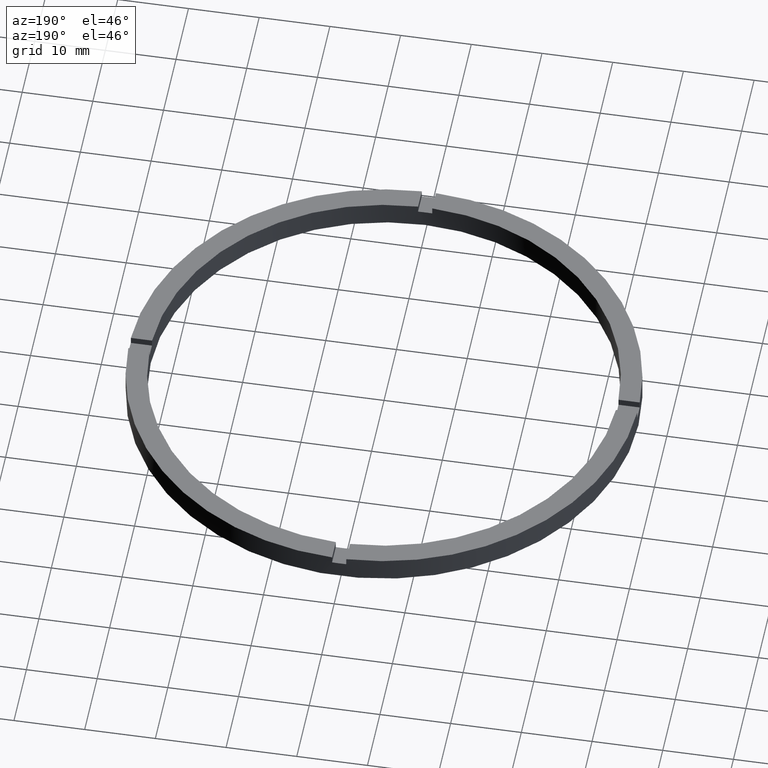
[diagram: clean part render]
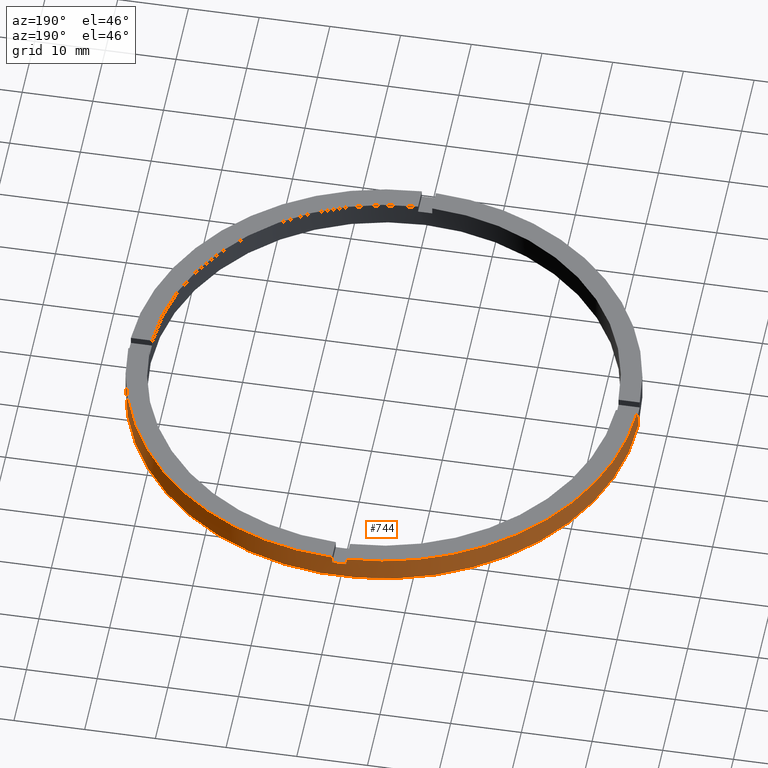
[diagram: same view with one face highlighted and labeled with its STEP entity id]
A machine part, auxiliary view. The second image highlights one B-rep face of the part: STEP entity #744.
In plain terms, the highlighted cylindrical surface (partial cylindrical patch) has radius 36 mm, axis along (-0, -0, -1).
Its self-contained STEP definition (entity closure, byte-faithful):
#1 = DIRECTION ( 'NONE',  ( -0.000000000000000000, -0.000000000000000000, -1.000000000000000000 ) ) ;
#10 = AXIS2_PLACEMENT_3D ( 'NONE', #440, #682, #284 ) ;
#15 = LINE ( 'NONE', #208, #17 ) ;
#17 = VECTOR ( 'NONE', #385, 1000.000000000000000 ) ;
#31 = CIRCLE ( 'NONE', #675, 36.00000000000000000 ) ;
#34 = LINE ( 'NONE', #452, #281 ) ;
#36 = ORIENTED_EDGE ( 'NONE', *, *, #370, .F. ) ;
#39 = CARTESIAN_POINT ( 'NONE',  ( 35.98610843089316091, 0.9999999999998421263, 3.500000000000000000 ) ) ;
#41 = VERTEX_POINT ( 'NONE', #226 ) ;
#44 = VERTEX_POINT ( 'NONE', #564 ) ;
#46 = VECTOR ( 'NONE', #260, 1000.000000000000000 ) ;
#69 = ORIENTED_EDGE ( 'NONE', *, *, #238, .F. ) ;
#80 = CARTESIAN_POINT ( 'NONE',  ( 0.000000000000000000, 0.000000000000000000, 3.500000000000000000 ) ) ;
#88 = VECTOR ( 'NONE', #1, 1000.000000000000000 ) ;
#94 = VERTEX_POINT ( 'NONE', #523 ) ;
#105 = VERTEX_POINT ( 'NONE', #39 ) ;
#107 = CIRCLE ( 'NONE', #425, 36.00000000000000000 ) ;
#120 = ORIENTED_EDGE ( 'NONE', *, *, #612, .T. ) ;
#132 = CARTESIAN_POINT ( 'NONE',  ( 0.000000000000000000, 0.000000000000000000, 2.500000000000000000 ) ) ;
#138 = DIRECTION ( 'NONE',  ( 0.000000000000000000, 0.000000000000000000, 1.000000000000000000 ) ) ;
#144 = DIRECTION ( 'NONE',  ( 1.000000000000000000, 0.000000000000000000, 0.000000000000000000 ) ) ;
#151 = DIRECTION ( 'NONE',  ( -0.000000000000000000, -0.000000000000000000, -1.000000000000000000 ) ) ;
#154 = CARTESIAN_POINT ( 'NONE',  ( 35.98610843089316091, 0.9999999999998421263, 3.500000000000000000 ) ) ;
#177 = CARTESIAN_POINT ( 'NONE',  ( -1.000000000000025091, 35.98610843089315381, 3.500000000000000000 ) ) ;
#194 = CARTESIAN_POINT ( 'NONE',  ( 0.000000000000000000, 0.000000000000000000, 2.500000000000000000 ) ) ;
#208 = CARTESIAN_POINT ( 'NONE',  ( 36.00000000000000000, 4.408728476930470856E-15, 3.500000000000000000 ) ) ;
#214 = EDGE_CURVE ( 'NONE', #105, #691, #270, .T. ) ;
#224 = EDGE_CURVE ( 'NONE', #94, #691, #34, .T. ) ;
#225 = DIRECTION ( 'NONE',  ( -1.000000000000000000, 0.000000000000000000, 0.000000000000000000 ) ) ;
#226 = CARTESIAN_POINT ( 'NONE',  ( 36.00000000000000000, 4.408728476930470856E-15, 0.000000000000000000 ) ) ;
#228 = CARTESIAN_POINT ( 'NONE',  ( 0.000000000000000000, 0.000000000000000000, 3.500000000000000000 ) ) ;
#233 = AXIS2_PLACEMENT_3D ( 'NONE', #80, #250, #316 ) ;
#234 = DIRECTION ( 'NONE',  ( 1.000000000000000000, 0.000000000000000000, 0.000000000000000000 ) ) ;
#238 = EDGE_CURVE ( 'NONE', #576, #659, #31, .T. ) ;
#241 = EDGE_CURVE ( 'NONE', #576, #41, #15, .T. ) ;
#243 = DIRECTION ( 'NONE',  ( 1.000000000000000000, 0.000000000000000000, 0.000000000000000000 ) ) ;
#246 = EDGE_CURVE ( 'NONE', #663, #330, #551, .T. ) ;
#250 = DIRECTION ( 'NONE',  ( 0.000000000000000000, 0.000000000000000000, 1.000000000000000000 ) ) ;
#254 = AXIS2_PLACEMENT_3D ( 'NONE', #132, #685, #746 ) ;
#260 = DIRECTION ( 'NONE',  ( -0.000000000000000000, -0.000000000000000000, -1.000000000000000000 ) ) ;
#264 = DIRECTION ( 'NONE',  ( 0.000000000000000000, 0.000000000000000000, 1.000000000000000000 ) ) ;
#268 = CARTESIAN_POINT ( 'NONE',  ( 0.000000000000000000, 0.000000000000000000, 3.500000000000000000 ) ) ;
#270 = CIRCLE ( 'NONE', #546, 36.00000000000000000 ) ;
#281 = VECTOR ( 'NONE', #503, 1000.000000000000000 ) ;
#284 = DIRECTION ( 'NONE',  ( 1.000000000000000000, 0.000000000000000000, 0.000000000000000000 ) ) ;
#291 = VECTOR ( 'NONE', #151, 1000.000000000000000 ) ;
#295 = CARTESIAN_POINT ( 'NONE',  ( 0.000000000000000000, 0.000000000000000000, 2.500000000000000000 ) ) ;
#306 = VERTEX_POINT ( 'NONE', #780 ) ;
#310 = LINE ( 'NONE', #473, #577 ) ;
#316 = DIRECTION ( 'NONE',  ( 1.000000000000000000, 0.000000000000000000, 0.000000000000000000 ) ) ;
#321 = LINE ( 'NONE', #154, #88 ) ;
#324 = EDGE_CURVE ( 'NONE', #94, #453, #357, .T. ) ;
#328 = ORIENTED_EDGE ( 'NONE', *, *, #246, .F. ) ;
#330 = VERTEX_POINT ( 'NONE', #396 ) ;
#340 = CYLINDRICAL_SURFACE ( 'NONE', #549, 36.00000000000000000 ) ;
#357 = CIRCLE ( 'NONE', #254, 36.00000000000000000 ) ;
#370 = EDGE_CURVE ( 'NONE', #306, #44, #390, .T. ) ;
#383 = ORIENTED_EDGE ( 'NONE', *, *, #483, .T. ) ;
#385 = DIRECTION ( 'NONE',  ( -0.000000000000000000, -0.000000000000000000, -1.000000000000000000 ) ) ;
#390 = CIRCLE ( 'NONE', #233, 36.00000000000000000 ) ;
#394 = ORIENTED_EDGE ( 'NONE', *, *, #241, .T. ) ;
#396 = CARTESIAN_POINT ( 'NONE',  ( -36.00000000000000000, 0.000000000000000000, 0.000000000000000000 ) ) ;
#408 = LINE ( 'NONE', #177, #46 ) ;
#421 = DIRECTION ( 'NONE',  ( -0.000000000000000000, -0.000000000000000000, -1.000000000000000000 ) ) ;
#424 = CARTESIAN_POINT ( 'NONE',  ( 0.9999999999999749090, 35.98610843089316091, 3.500000000000000000 ) ) ;
#425 = AXIS2_PLACEMENT_3D ( 'NONE', #194, #138, #243 ) ;
#440 = CARTESIAN_POINT ( 'NONE',  ( 0.000000000000000000, 0.000000000000000000, 0.000000000000000000 ) ) ;
#441 = EDGE_CURVE ( 'NONE', #41, #330, #639, .T. ) ;
#445 = CARTESIAN_POINT ( 'NONE',  ( -36.00000000000000000, 0.000000000000000000, 3.500000000000000000 ) ) ;
#446 = EDGE_CURVE ( 'NONE', #652, #663, #107, .T. ) ;
#452 = CARTESIAN_POINT ( 'NONE',  ( 0.9999999999999749090, 35.98610843089316091, 3.500000000000000000 ) ) ;
#453 = VERTEX_POINT ( 'NONE', #531 ) ;
#462 = CARTESIAN_POINT ( 'NONE',  ( 35.98610843089316091, 0.9999999999998421263, 2.500000000000000000 ) ) ;
#466 = ORIENTED_EDGE ( 'NONE', *, *, #441, .T. ) ;
#468 = ORIENTED_EDGE ( 'NONE', *, *, #779, .T. ) ;
#473 = CARTESIAN_POINT ( 'NONE',  ( -35.98610843089316091, 0.9999999999999729106, 3.500000000000000000 ) ) ;
#483 = EDGE_CURVE ( 'NONE', #306, #453, #408, .T. ) ;
#500 = FACE_OUTER_BOUND ( 'NONE', #594, .T. ) ;
#503 = DIRECTION ( 'NONE',  ( 0.000000000000000000, 0.000000000000000000, 1.000000000000000000 ) ) ;
#507 = CARTESIAN_POINT ( 'NONE',  ( -35.98610843089316091, 0.9999999999999729106, 2.500000000000000000 ) ) ;
#510 = CARTESIAN_POINT ( 'NONE',  ( -36.00000000000000000, 0.000000000000000000, 2.500000000000000000 ) ) ;
#523 = CARTESIAN_POINT ( 'NONE',  ( 0.9999999999999749090, 35.98610843089316091, 2.500000000000000000 ) ) ;
#531 = CARTESIAN_POINT ( 'NONE',  ( -1.000000000000025091, 35.98610843089315381, 2.500000000000000000 ) ) ;
#543 = CARTESIAN_POINT ( 'NONE',  ( 36.00000000000000000, 4.408728476930470856E-15, 2.500000000000000000 ) ) ;
#546 = AXIS2_PLACEMENT_3D ( 'NONE', #268, #264, #234 ) ;
#549 = AXIS2_PLACEMENT_3D ( 'NONE', #228, #421, #225 ) ;
#551 = LINE ( 'NONE', #445, #291 ) ;
#564 = CARTESIAN_POINT ( 'NONE',  ( -35.98610843089316091, 0.9999999999999729106, 3.500000000000000000 ) ) ;
#567 = ORIENTED_EDGE ( 'NONE', *, *, #224, .T. ) ;
#576 = VERTEX_POINT ( 'NONE', #543 ) ;
#577 = VECTOR ( 'NONE', #688, 1000.000000000000000 ) ;
#579 = ORIENTED_EDGE ( 'NONE', *, *, #446, .F. ) ;
#588 = ORIENTED_EDGE ( 'NONE', *, *, #324, .F. ) ;
#594 = EDGE_LOOP ( 'NONE', ( #69, #394, #466, #328, #579, #120, #36, #383, #588, #567, #709, #468 ) ) ;
#612 = EDGE_CURVE ( 'NONE', #652, #44, #310, .T. ) ;
#639 = CIRCLE ( 'NONE', #10, 36.00000000000000000 ) ;
#652 = VERTEX_POINT ( 'NONE', #507 ) ;
#659 = VERTEX_POINT ( 'NONE', #462 ) ;
#663 = VERTEX_POINT ( 'NONE', #510 ) ;
#675 = AXIS2_PLACEMENT_3D ( 'NONE', #295, #782, #144 ) ;
#682 = DIRECTION ( 'NONE',  ( 0.000000000000000000, 0.000000000000000000, 1.000000000000000000 ) ) ;
#685 = DIRECTION ( 'NONE',  ( 0.000000000000000000, -0.000000000000000000, 1.000000000000000000 ) ) ;
#688 = DIRECTION ( 'NONE',  ( 0.000000000000000000, 0.000000000000000000, 1.000000000000000000 ) ) ;
#691 = VERTEX_POINT ( 'NONE', #424 ) ;
#709 = ORIENTED_EDGE ( 'NONE', *, *, #214, .F. ) ;
#744 = ADVANCED_FACE ( 'NONE', ( #500 ), #340, .T. ) ;
#746 = DIRECTION ( 'NONE',  ( 1.000000000000000000, 0.000000000000000000, 0.000000000000000000 ) ) ;
#779 = EDGE_CURVE ( 'NONE', #105, #659, #321, .T. ) ;
#780 = CARTESIAN_POINT ( 'NONE',  ( -1.000000000000025091, 35.98610843089315381, 3.500000000000000000 ) ) ;
#782 = DIRECTION ( 'NONE',  ( 0.000000000000000000, 0.000000000000000000, 1.000000000000000000 ) ) ;